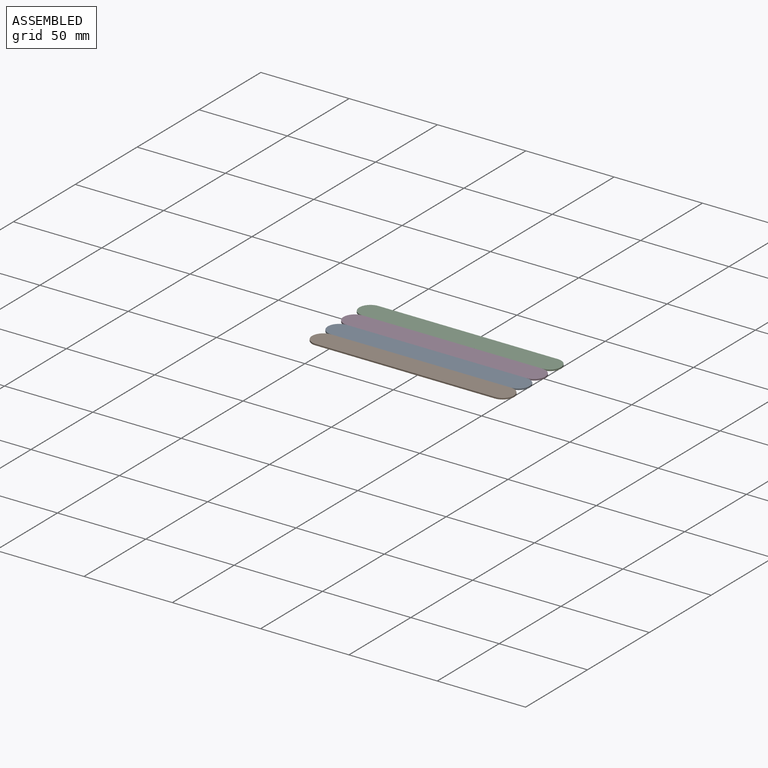
[diagram: assembled view]
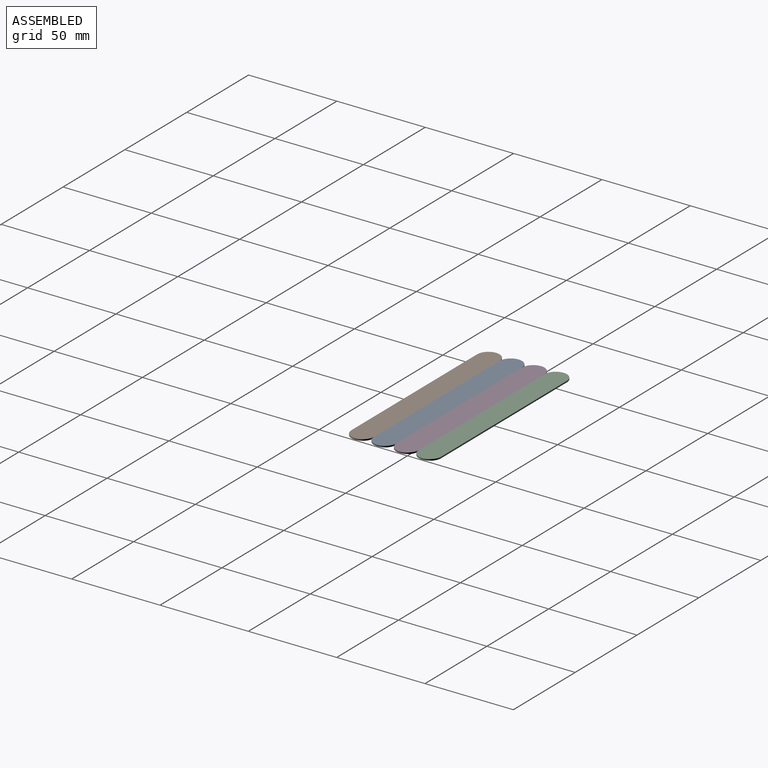
[diagram: assembled view, second angle]
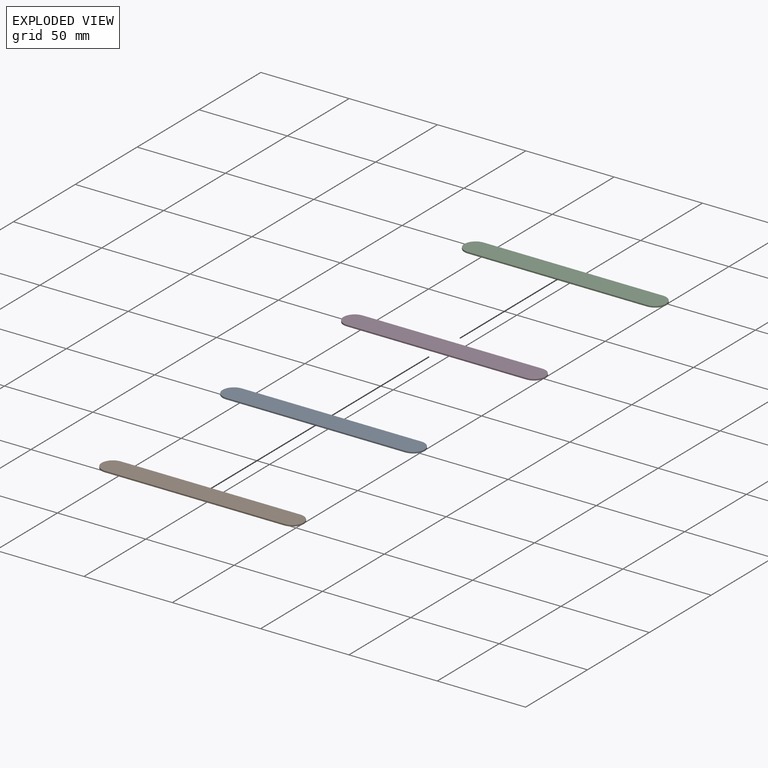
[diagram: exploded view]
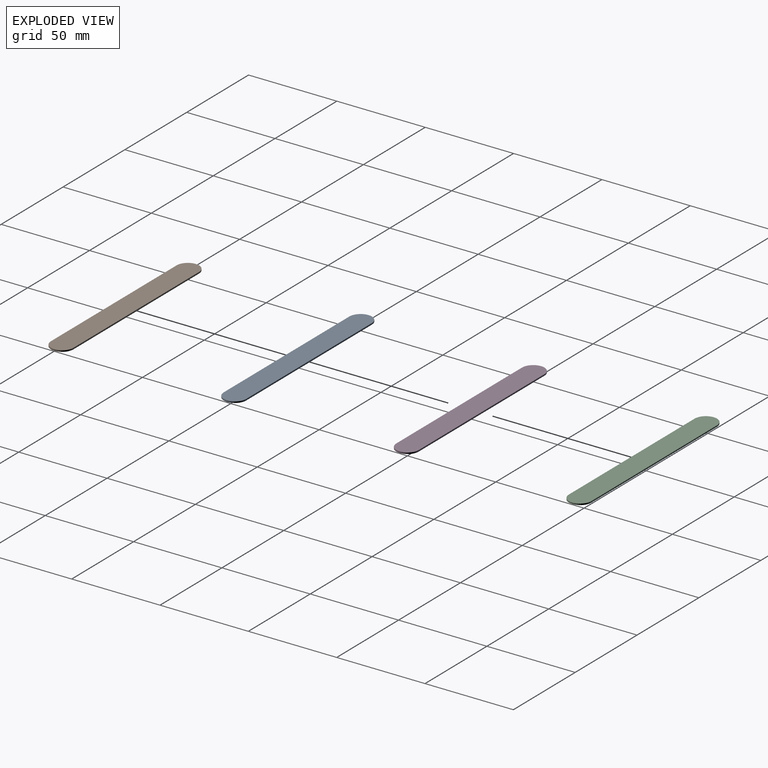
[diagram: exploded view, second angle]
ASSEMBLY  parts=4 mates=3
PART A: 6 faces, bbox 114.3x12.7x0.8 mm
  f0: cylinder r=6.35mm len=12.7mm, axis (0,0,-1), area 15.8mm2, adj f1,f3,f4,f5
  f1: plane 101.6x0.79mm, normal (0,1,0), area 80.6mm2, adj f0,f2,f4,f5
  f2: cylinder r=6.35mm len=12.7mm, axis (0,0,-1), area 15.8mm2, adj f1,f3,f4,f5
  f3: plane 101.6x0.79mm, normal (0,-1,0), area 80.6mm2, adj f0,f2,f4,f5
  f4: plane 114.3x12.7mm, normal (0,0,1), area 1417mm2, adj f0,f1,f2,f3
  f5: plane 114.3x12.7mm, normal (0,0,-1), area 1417mm2, adj f0,f1,f2,f3
PART B: same geometry as A
PART C: same geometry as A
PART D: same geometry as A
PLACE A t=(-54.31,-15.07,-33.66)mm
PLACE B t=(-54.31,-27.77,-33.66)mm
PLACE C t=(-54.31,10.33,-33.66)mm
PLACE D rot(axis=(1,0,0),180deg) t=(-54.31,-2.37,-32.87)mm
MATE fastened D.f3 <-> C.f3  axis (0,1,0) through (-54.31,3.98,-33.27)mm
MATE fastened D.f1 <-> A.f1  axis (0,-1,0) through (-54.31,-8.72,-33.27)mm
MATE fastened A.f3 <-> B.f1  axis (0,-1,0) through (-54.31,-21.42,-33.27)mm
